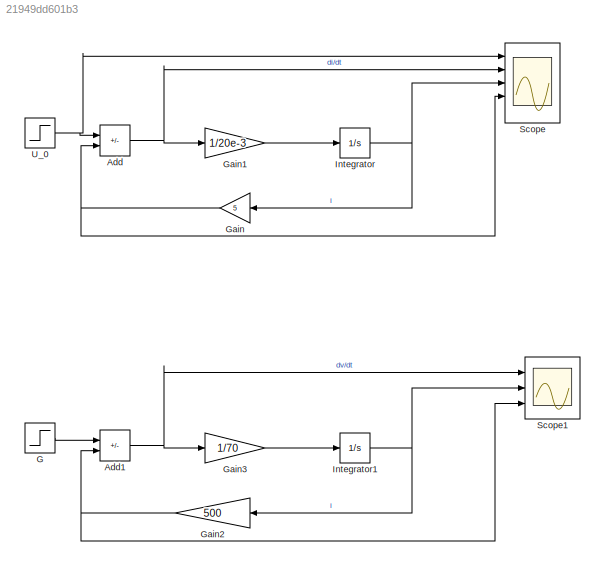
MODEL slx_21949dd601b3
KIND model
CONFIG AbsTol = auto
CONFIG EnableMultiTasking = off
CONFIG FixedStep = auto
CONFIG MaxStep = auto
CONFIG MinStep = auto
CONFIG RelTol = 1e-6
CONFIG SampleTimeConstraint = Unconstrained
CONFIG SolverName = VariableStepAuto
CONFIG StartTime = 0
CONFIG StopTime = 2
BLOCK [Sum] Add
  IconShape = rectangular
  Inputs = +-
  Ports = [2, 1]
BLOCK [Sum] Add1
  IconShape = rectangular
  Inputs = +-
  Ports = [2, 1]
BLOCK [Step] G
  After = 70
  SampleTime = 0
BLOCK [Gain] Gain
  Gain = 5
BLOCK [Gain] Gain1
  Gain = 1/20e-3
BLOCK [Gain] Gain2
  Gain = 500
BLOCK [Gain] Gain3
  Gain = 1/70
BLOCK [Integrator] Integrator
  Ports = [1, 1]
BLOCK [Integrator] Integrator1
  Ports = [1, 1]
BLOCK [Scope] Scope
  Floating = off
  NumInputPorts = 5
  Ports = [5]
  ScopeSpecificationString = Simulink.scopes.TimeScopeBlockCfg('CurrentConfiguration', extmgr.ConfigurationSet(extmgr.Configuration('Core','General UI',true),extmgr.Configuration('Core','Source UI',true),extmgr.Configuration('Sources','WiredSimulink',true),extmgr.Configuration('Visuals','Time Domain',true,'SerializedDisplays',{struct('MinYLimReal','-1.5','MaxYLimReal','13.5','YLabelReal','','MinYLimMag','0.00000','MaxYLimMag'...<+1458ch>
BLOCK [Scope] Scope1
  Floating = off
  NumInputPorts = 3
  Ports = [3]
  ScopeSpecificationString = Simulink.scopes.TimeScopeBlockCfg('CurrentConfiguration', extmgr.ConfigurationSet(extmgr.Configuration('Core','General UI',true),extmgr.Configuration('Core','Source UI',true),extmgr.Configuration('Sources','WiredSimulink',true,'DataLoggingVariableName','ScopeData1'),extmgr.Configuration('Visuals','Time Domain',true,'SerializedDisplays',{struct('MinYLimReal','-8.75','MaxYLimReal','78.75','YLabelRea...<+1362ch>
BLOCK [Step] U_0
  After = 12
  SampleTime = 0
NET Add1:1 -> Gain3:1, Scope1:1
NET Add:1 -> Gain1:1, Scope:2
LINE G:1 -> Add1:1
LINE Gain1:1 -> Integrator:1
NET Gain2:1 -> Add1:2, Scope1:3
LINE Gain3:1 -> Integrator1:1
NET Gain:1 -> Add:2, Scope:4
NET Integrator1:1 -> Gain2:1, Scope1:2
NET Integrator:1 -> Gain:1, Scope:3
NET U_0:1 -> Add:1, Scope:1
note: NET lines group one-source signal fan-out (src -> all destinations, sorted); 1:1 wires keep LINE
